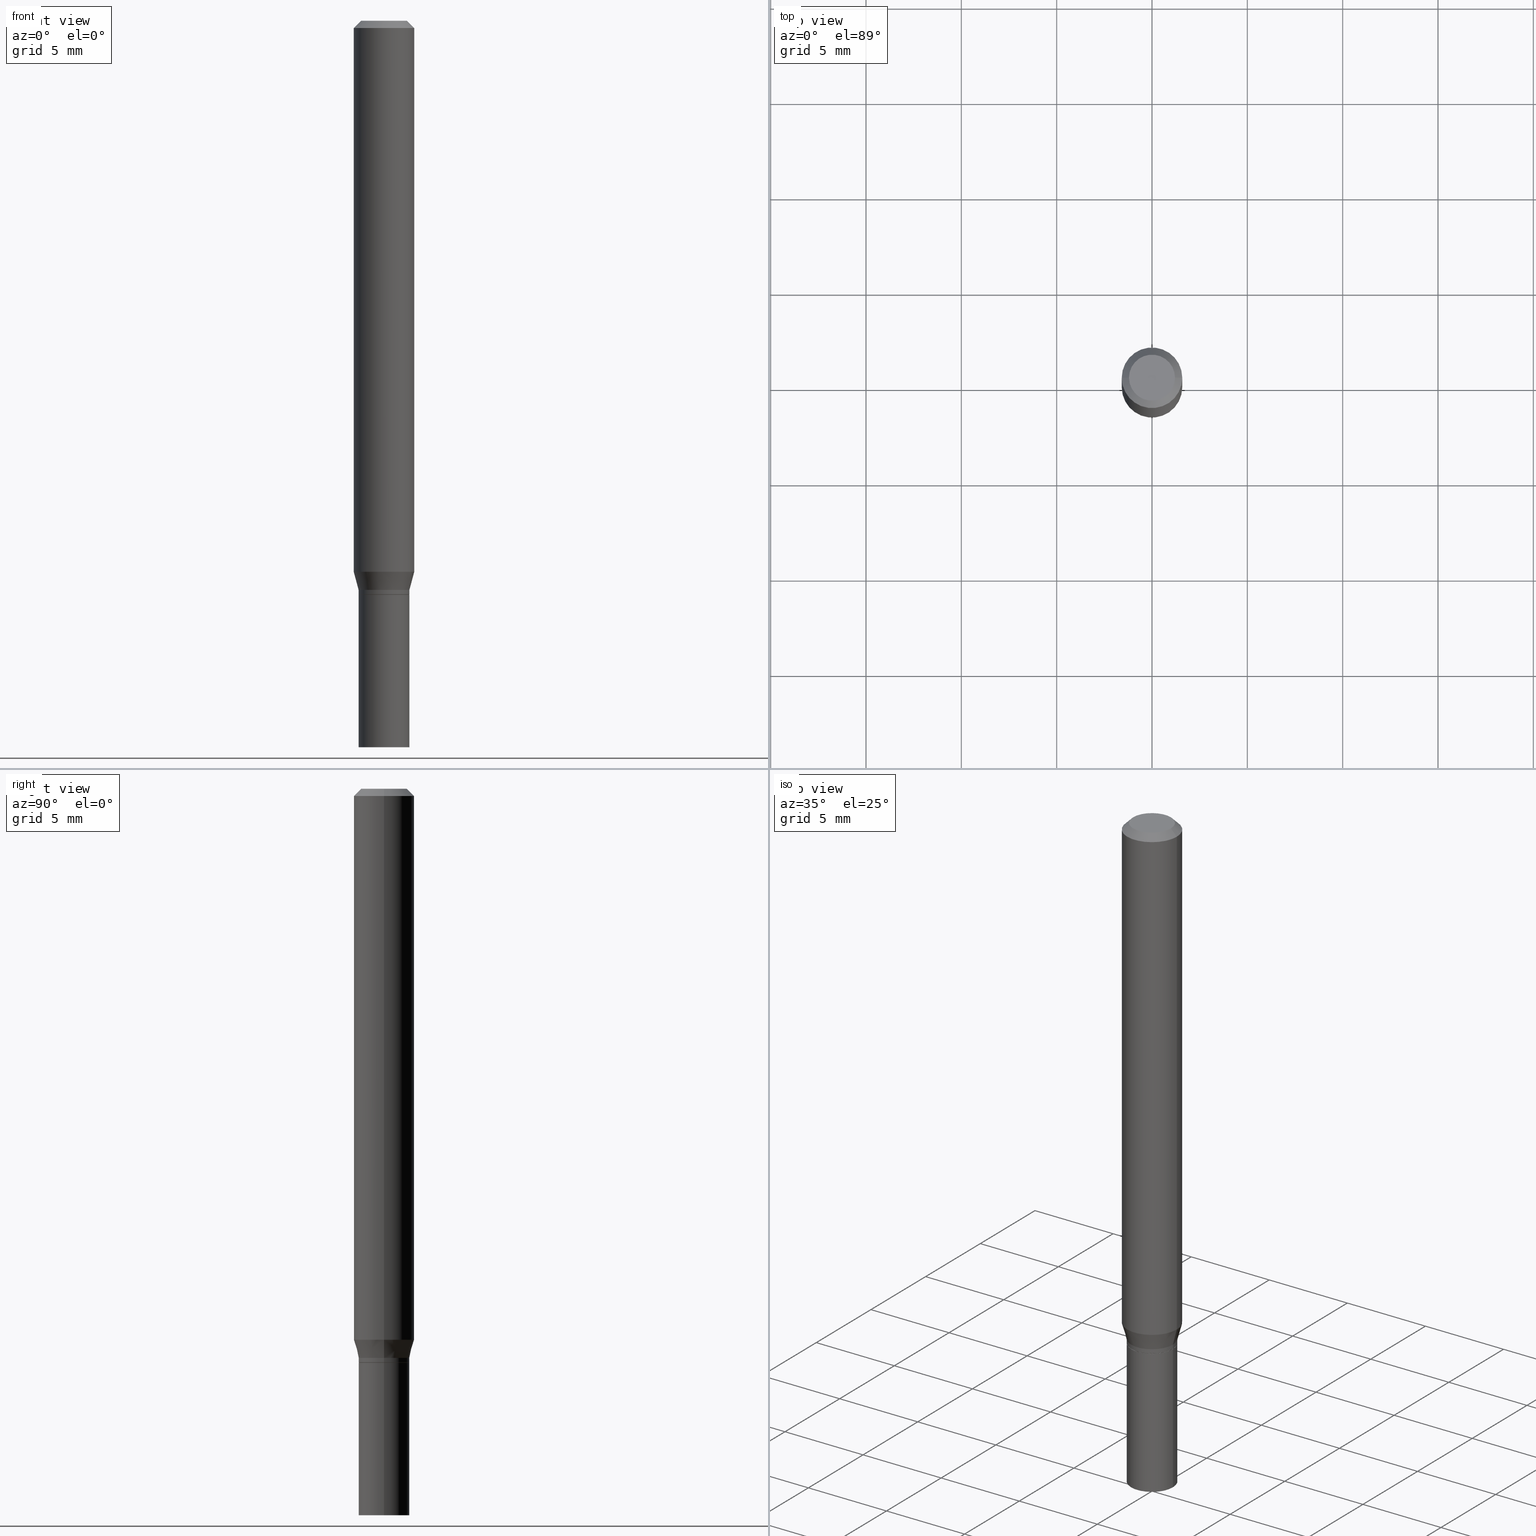
[diagram: canonical four-view strip — front | top / right | iso, engineering-drawing reading convention]
A machine part, canonical four-view strip (front | top / right | iso — engineering-drawing reading convention). The complete STEP part file that produces these views, byte-faithful:
ISO-10303-21;
HEADER;
FILE_DESCRIPTION (( 'STEP AP203' ),
    '1' );
FILE_NAME ('02500.STEP',
    '2024-03-18T20:59:29',
    ( '' ),
    ( '' ),
    'SwSTEP 2.0',
    'SolidWorks 2023',
    '' );
FILE_SCHEMA (( 'CONFIG_CONTROL_DESIGN' ));
ENDSEC;

DATA;
#1 = PERSON_AND_ORGANIZATION ( #422, #417 ) ;
#2 = LINE ( 'NONE', #41, #443 ) ;
#3 = CARTESIAN_POINT ( 'NONE',  ( 0.000000000000000000, 0.000000000000000000, 0.000000000000000000 ) ) ;
#4 = PERSON_AND_ORGANIZATION_ROLE ( 'classification_officer' ) ;
#5 = DIMENSIONAL_EXPONENTS ( 1.000000000000000000, 0.000000000000000000, 0.000000000000000000, 0.000000000000000000, 0.000000000000000000, 0.000000000000000000, 0.000000000000000000 ) ;
#6 = FACE_OUTER_BOUND ( 'NONE', #412, .T. ) ;
#7 = CIRCLE ( 'NONE', #96, 0.05199999999999999067 ) ;
#8 = LINE ( 'NONE', #326, #127 ) ;
#9 = DATE_AND_TIME ( #141, #214 ) ;
#10 = DIRECTION ( 'NONE',  ( 1.000000000000000000, -6.982962677686270655E-15, 0.000000000000000000 ) ) ;
#11 = ORIENTED_EDGE ( 'NONE', *, *, #60, .F. ) ;
#12 = DATE_AND_TIME ( #292, #154 ) ;
#13 = APPROVAL ( #401, 'UNSPECIFIED' ) ;
#14 = VECTOR ( 'NONE', #310, 39.37007874015748854 ) ;
#15 = VERTEX_POINT ( 'NONE', #204 ) ;
#16 = ORIENTED_EDGE ( 'NONE', *, *, #150, .T. ) ;
#17 = ADVANCED_FACE ( 'NONE', ( #205 ), #299, .T. ) ;
#18 = ORIENTED_EDGE ( 'NONE', *, *, #228, .T. ) ;
#19 = AXIS2_PLACEMENT_3D ( 'NONE', #130, #170, #396 ) ;
#20 = ORIENTED_EDGE ( 'NONE', *, *, #466, .F. ) ;
#21 = CARTESIAN_POINT ( 'NONE',  ( 0.05249999999999999806, -5.603827548843247337E-15, -1.500000000000000222 ) ) ;
#22 = ORIENTED_EDGE ( 'NONE', *, *, #216, .F. ) ;
#23 = VERTEX_POINT ( 'NONE', #21 ) ;
#24 = DIRECTION ( 'NONE',  ( 1.000000000000000000, -6.982962677686258822E-15, 0.000000000000000000 ) ) ;
#25 = VECTOR ( 'NONE', #252, 39.37007874015748143 ) ;
#26 = VECTOR ( 'NONE', #393, 39.37007874015748143 ) ;
#27 = CYLINDRICAL_SURFACE ( 'NONE', #179, 0.06250000000000000000 ) ;
#28 = LENGTH_MEASURE_WITH_UNIT ( LENGTH_MEASURE( 0.02539999999999999897 ), #387 );
#29 = ADVANCED_FACE ( 'NONE', ( #380 ), #384, .F. ) ;
#30 = EDGE_CURVE ( 'NONE', #138, #51, #158, .T. ) ;
#31 = DIRECTION ( 'NONE',  ( 1.000000000000000000, -6.982962677686265922E-15, 4.876176775795935232E-29 ) ) ;
#32 = CARTESIAN_POINT ( 'NONE',  ( -0.05199999999999999067, -3.765273936759765493E-15, -1.185000000000000275 ) ) ;
#33 = CIRCLE ( 'NONE', #109, 0.05250000000000005357 ) ;
#34 = PERSON_AND_ORGANIZATION_ROLE ( 'design_supplier' ) ;
#35 = AXIS2_PLACEMENT_3D ( 'NONE', #99, #102, #400 ) ;
#36 = DIRECTION ( 'NONE',  ( -2.445468806185136597E-29, 3.491481338843145583E-15, 1.000000000000000000 ) ) ;
#37 = ADVANCED_FACE ( 'NONE', ( #302 ), #27, .T. ) ;
#38 = PERSON_AND_ORGANIZATION ( #422, #417 ) ;
#39 = LINE ( 'NONE', #211, #26 ) ;
#40 = PERSON_AND_ORGANIZATION ( #422, #417 ) ;
#41 = CARTESIAN_POINT ( 'NONE',  ( -0.05249999999999999806, 3.730349362740525838E-16, -2.582440922383825311E-30 ) ) ;
#42 = COORDINATED_UNIVERSAL_TIME_OFFSET ( 5, 0, .BEHIND. ) ;
#43 = CIRCLE ( 'NONE', #300, 0.04749999999999999362 ) ;
#44 = CARTESIAN_POINT ( 'NONE',  ( 2.873425847267535838E-29, -4.102490573140696681E-15, -1.175000000000000266 ) ) ;
#45 = CC_DESIGN_SECURITY_CLASSIFICATION ( #226, ( #236 ) ) ;
#46 = ADVANCED_FACE ( 'NONE', ( #306 ), #377, .F. ) ;
#47 = SECURITY_CLASSIFICATION_LEVEL ( 'unclassified' ) ;
#48 = VERTEX_POINT ( 'NONE', #69 ) ;
#49 = LINE ( 'NONE', #264, #63 ) ;
#50 = EDGE_LOOP ( 'NONE', ( #325, #419 ) ) ;
#51 = VERTEX_POINT ( 'NONE', #281 ) ;
#52 = CARTESIAN_POINT ( 'NONE',  ( 0.05199999999999999067, -4.500519445768813694E-15, -1.185000000000000275 ) ) ;
#53 = CIRCLE ( 'NONE', #374, 0.06250000000000000000 ) ;
#54 = ORIENTED_EDGE ( 'NONE', *, *, #466, .T. ) ;
#55 = ORIENTED_EDGE ( 'NONE', *, *, #272, .F. ) ;
#56 = VERTEX_POINT ( 'NONE', #171 ) ;
#57 = EDGE_LOOP ( 'NONE', ( #413, #332, #343, #199 ) ) ;
#58 = MANIFOLD_SOLID_BREP ( 'Body-Move/Copy2[2]', #320 ) ;
#59 = AXIS2_PLACEMENT_3D ( 'NONE', #424, #245, #274 ) ;
#60 = EDGE_CURVE ( 'NONE', #298, #190, #128, .T. ) ;
#61 = ORIENTED_EDGE ( 'NONE', *, *, #295, .F. ) ;
#62 = EDGE_CURVE ( 'NONE', #152, #51, #273, .T. ) ;
#63 = VECTOR ( 'NONE', #327, 39.37007874015748854 ) ;
#64 = CARTESIAN_POINT ( 'NONE',  ( 0.000000000000000000, 0.000000000000000000, 0.000000000000000000 ) ) ;
#65 = DIRECTION ( 'NONE',  ( 1.000000000000000000, -6.982962677686268288E-15, 0.000000000000000000 ) ) ;
#66 = CARTESIAN_POINT ( 'NONE',  ( 0.05249999999999999806, -3.666055405785289629E-16, 2.559992807292866011E-30 ) ) ;
#67 = DIRECTION ( 'NONE',  ( -2.445468806185136597E-29, 3.491481338843145583E-15, 1.000000000000000000 ) ) ;
#68 = DATE_AND_TIME ( #71, #284 ) ;
#69 = CARTESIAN_POINT ( 'NONE',  ( -0.05250000000000005357, -3.762624709585653503E-15, -1.184500000000000108 ) ) ;
#70 = LINE ( 'NONE', #390, #14 ) ;
#71 = CALENDAR_DATE ( 2024, 18, 3 ) ;
#72 = CONICAL_SURFACE ( 'NONE', #267, 0.06250000000000000000, 0.7853981633974549403 ) ;
#73 = FACE_OUTER_BOUND ( 'NONE', #88, .T. ) ;
#74 = CYLINDRICAL_SURFACE ( 'NONE', #243, 0.05250000000000005357 ) ;
#75 = PERSON_AND_ORGANIZATION ( #422, #417 ) ;
#76 = APPLICATION_PROTOCOL_DEFINITION ( 'international standard', 'config_control_design', 1994, #461 ) ;
#77 = ORIENTED_EDGE ( 'NONE', *, *, #258, .F. ) ;
#78 = CARTESIAN_POINT ( 'NONE',  ( 0.06250000000000000000, -4.408621882993677332E-15, -1.137679491924311614 ) ) ;
#79 = LINE ( 'NONE', #221, #311 ) ;
#80 = CC_DESIGN_DATE_AND_TIME_ASSIGNMENT ( #180, #225, ( #226 ) ) ;
#81 = APPROVAL_ROLE ( '' ) ;
#82 = CIRCLE ( 'NONE', #262, 0.06250000000000000000 ) ;
#83 = ORIENTED_EDGE ( 'NONE', *, *, #261, .F. ) ;
#84 = CARTESIAN_POINT ( 'NONE',  ( 3.668203209277705088E-31, -5.237222008264718399E-17, -0.01499999999999999944 ) ) ;
#85 = ADVANCED_FACE ( 'NONE', ( #73 ), #425, .T. ) ;
#86 = ORIENTED_EDGE ( 'NONE', *, *, #254, .F. ) ;
#87 = CARTESIAN_POINT ( 'NONE',  ( 3.668203209277705088E-31, -5.237222008264718399E-17, -0.01499999999999999944 ) ) ;
#88 = EDGE_LOOP ( 'NONE', ( #423, #450, #375, #363 ) ) ;
#89 = EDGE_CURVE ( 'NONE', #23, #15, #359, .T. ) ;
#90 = ADVANCED_FACE ( 'NONE', ( #6 ), #351, .T. ) ;
#91 = CARTESIAN_POINT ( 'NONE',  ( 2.897880535329387383E-29, -4.137405386529128330E-15, -1.185000000000000275 ) ) ;
#92 = EDGE_CURVE ( 'NONE', #113, #56, #2, .T. ) ;
#93 = ORIENTED_EDGE ( 'NONE', *, *, #370, .F. ) ;
#94 = AXIS2_PLACEMENT_3D ( 'NONE', #316, #430, #391 ) ;
#95 = ORIENTED_EDGE ( 'NONE', *, *, #254, .T. ) ;
#96 = AXIS2_PLACEMENT_3D ( 'NONE', #290, #111, #260 ) ;
#97 = CARTESIAN_POINT ( 'NONE',  ( 2.873425847267535838E-29, -4.102490573140696681E-15, -1.175000000000000266 ) ) ;
#98 = CARTESIAN_POINT ( 'NONE',  ( -0.05249999999999999806, -4.314278761122870719E-15, -1.500000000000000222 ) ) ;
#99 = CARTESIAN_POINT ( 'NONE',  ( 3.668203209277705088E-31, -5.237222008264718399E-17, -0.01499999999999999944 ) ) ;
#100 = APPLICATION_PROTOCOL_DEFINITION ( 'international standard', 'config_control_design', 1994, #445 ) ;
#101 = CARTESIAN_POINT ( 'NONE',  ( 0.000000000000000000, 0.000000000000000000, 0.000000000000000000 ) ) ;
#102 = DIRECTION ( 'NONE',  ( 2.445468806185136597E-29, -3.491481338843145583E-15, -1.000000000000000000 ) ) ;
#103 =( NAMED_UNIT ( * ) PLANE_ANGLE_UNIT ( ) SI_UNIT ( $, .RADIAN. ) );
#104 = AXIS2_PLACEMENT_3D ( 'NONE', #132, #253, #172 ) ;
#105 = CARTESIAN_POINT ( 'NONE',  ( 2.896657800926294581E-29, -4.135659645859706826E-15, -1.184500000000000108 ) ) ;
#106 =( NAMED_UNIT ( * ) SI_UNIT ( $, .STERADIAN. ) SOLID_ANGLE_UNIT ( ) );
#107 = DIRECTION ( 'NONE',  ( -2.445468806185136877E-29, 3.491481338843145188E-15, 1.000000000000000000 ) ) ;
#108 = PERSON_AND_ORGANIZATION_ROLE ( 'design_owner' ) ;
#109 = AXIS2_PLACEMENT_3D ( 'NONE', #105, #125, #208 ) ;
#110 = CONICAL_SURFACE ( 'NONE', #453, 0.05250000000000004663, 0.2617993877991499074 ) ;
#111 = DIRECTION ( 'NONE',  ( -2.445468806185136597E-29, 3.491481338843145583E-15, 1.000000000000000000 ) ) ;
#112 = DIRECTION ( 'NONE',  ( -1.000000000000000000, 6.982962677686266711E-15, 0.000000000000000000 ) ) ;
#113 = VERTEX_POINT ( 'NONE', #98 ) ;
#114 = ORIENTED_EDGE ( 'NONE', *, *, #89, .F. ) ;
#115 = AXIS2_PLACEMENT_3D ( 'NONE', #118, #238, #155 ) ;
#116 = LOCAL_TIME ( 16, 59, 29.00000000000000000, #349 ) ;
#117 = ORIENTED_EDGE ( 'NONE', *, *, #265, .T. ) ;
#118 = CARTESIAN_POINT ( 'NONE',  ( 3.316907271900976096E-16, 0.04749999999999999362, -2.653275547260257586E-16 ) ) ;
#119 = EDGE_LOOP ( 'NONE', ( #54, #369, #83, #410 ) ) ;
#120 = ADVANCED_FACE ( 'NONE', ( #217 ), #398, .T. ) ;
#121 = AXIS2_PLACEMENT_3D ( 'NONE', #447, #368, #182 ) ;
#122 = ORIENTED_EDGE ( 'NONE', *, *, #394, .F. ) ;
#123 = DIRECTION ( 'NONE',  ( 2.438088387897960049E-29, -3.491481338843145188E-15, -1.000000000000000000 ) ) ;
#124 =( CONVERSION_BASED_UNIT ( 'INCH', #28 ) LENGTH_UNIT ( ) NAMED_UNIT ( #5 ) );
#125 = DIRECTION ( 'NONE',  ( -2.445468806185136597E-29, 3.491481338843145583E-15, 1.000000000000000000 ) ) ;
#126 = DIRECTION ( 'NONE',  ( 1.000000000000000000, -6.982962677686258822E-15, 0.000000000000000000 ) ) ;
#127 = VECTOR ( 'NONE', #186, 39.37007874015748143 ) ;
#128 = LINE ( 'NONE', #282, #25 ) ;
#129 = DIRECTION ( 'NONE',  ( 1.000000000000000000, -6.982962677686267499E-15, 4.852736867747366768E-29 ) ) ;
#130 = CARTESIAN_POINT ( 'NONE',  ( 0.000000000000000000, 0.000000000000000000, 0.000000000000000000 ) ) ;
#131 = DIRECTION ( 'NONE',  ( -2.445468806185136597E-29, 3.491481338843145583E-15, 1.000000000000000000 ) ) ;
#132 = CARTESIAN_POINT ( 'NONE',  ( 2.897880535329387383E-29, -4.137405386529128330E-15, -1.185000000000000275 ) ) ;
#133 = DIRECTION ( 'NONE',  ( -2.445468806185136597E-29, 3.491481338843145583E-15, 1.000000000000000000 ) ) ;
#134 = CARTESIAN_POINT ( 'NONE',  ( 2.897880535329387383E-29, -4.137405386529128330E-15, -1.185000000000000275 ) ) ;
#135 = CALENDAR_DATE ( 2024, 18, 3 ) ;
#136 = CARTESIAN_POINT ( 'NONE',  ( 3.668203209277704895E-29, -5.237222008264718177E-15, -1.500000000000000222 ) ) ;
#137 = APPROVAL_DATE_TIME ( #9, #361 ) ;
#138 = VERTEX_POINT ( 'NONE', #257 ) ;
#139 = ADVANCED_BREP_SHAPE_REPRESENTATION ( '02500', ( #364, #58, #19 ), #444 ) ;
#140 = ORIENTED_EDGE ( 'NONE', *, *, #92, .F. ) ;
#141 = CALENDAR_DATE ( 2024, 18, 3 ) ;
#142 = CARTESIAN_POINT ( 'NONE',  ( 0.06250000000000000000, -4.888073874380388472E-16, -0.01499999999999999944 ) ) ;
#143 = LINE ( 'NONE', #442, #399 ) ;
#144 = ORIENTED_EDGE ( 'NONE', *, *, #420, .F. ) ;
#145 = AXIS2_PLACEMENT_3D ( 'NONE', #463, #275, #210 ) ;
#146 = CIRCLE ( 'NONE', #352, 0.05249999999999999806 ) ;
#147 = APPROVAL_PERSON_ORGANIZATION ( #285, #361, #436 ) ;
#148 = DIRECTION ( 'NONE',  ( -2.445468806185136597E-29, 3.491481338843145583E-15, 1.000000000000000000 ) ) ;
#149 = EDGE_LOOP ( 'NONE', ( #414, #385, #86, #22 ) ) ;
#150 = EDGE_CURVE ( 'NONE', #113, #23, #407, .T. ) ;
#151 = APPROVAL ( #367, 'UNSPECIFIED' ) ;
#152 = VERTEX_POINT ( 'NONE', #178 ) ;
#153 = CONICAL_SURFACE ( 'NONE', #169, 0.05199999999999999067, 0.7853981633974739252 ) ;
#154 = LOCAL_TIME ( 16, 59, 29.00000000000000000, #42 ) ;
#155 = DIRECTION ( 'NONE',  ( -1.000000000000000000, 6.982962677686265922E-15, -4.876176775795935793E-29 ) ) ;
#156 = EDGE_CURVE ( 'NONE', #196, #48, #33, .T. ) ;
#157 = CC_DESIGN_PERSON_AND_ORGANIZATION_ASSIGNMENT ( #177, #4, ( #226 ) ) ;
#158 = LINE ( 'NONE', #344, #159 ) ;
#159 = VECTOR ( 'NONE', #303, 39.37007874015748143 ) ;
#160 = CONICAL_SURFACE ( 'NONE', #270, 0.05250000000000004663, 0.2617993877991499074 ) ;
#161 = CARTESIAN_POINT ( 'NONE',  ( 0.000000000000000000, 0.000000000000000000, 0.000000000000000000 ) ) ;
#162 = CARTESIAN_POINT ( 'NONE',  ( 0.04749999999999999362, -4.035134999187581581E-16, -1.989643822619502098E-16 ) ) ;
#163 = EDGE_CURVE ( 'NONE', #229, #239, #383, .T. ) ;
#164 = FACE_OUTER_BOUND ( 'NONE', #57, .T. ) ;
#165 = EDGE_CURVE ( 'NONE', #152, #298, #381, .T. ) ;
#166 = CC_DESIGN_PERSON_AND_ORGANIZATION_ASSIGNMENT ( #314, #108, ( #439 ) ) ;
#167 = DIRECTION ( 'NONE',  ( -2.438088387897960049E-29, 3.491481338843145188E-15, 1.000000000000000000 ) ) ;
#168 = AXIS2_PLACEMENT_3D ( 'NONE', #247, #131, #402 ) ;
#169 = AXIS2_PLACEMENT_3D ( 'NONE', #248, #457, #126 ) ;
#170 = DIRECTION ( 'NONE',  ( 0.000000000000000000, 0.000000000000000000, 1.000000000000000000 ) ) ;
#171 = CARTESIAN_POINT ( 'NONE',  ( -0.05249999999999999806, -4.314278761122870719E-15, -1.185000000000000275 ) ) ;
#172 = DIRECTION ( 'NONE',  ( 1.000000000000000000, -6.982962677686258822E-15, 0.000000000000000000 ) ) ;
#173 = APPROVAL_DATE_TIME ( #12, #13 ) ;
#174 = DIRECTION ( 'NONE',  ( -0.7071067811865522357, 2.468850131082306364E-15, -0.7071067811865427988 ) ) ;
#175 = FACE_OUTER_BOUND ( 'NONE', #149, .T. ) ;
#176 = ADVANCED_FACE ( 'NONE', ( #428 ), #318, .F. ) ;
#177 = PERSON_AND_ORGANIZATION ( #422, #417 ) ;
#178 = CARTESIAN_POINT ( 'NONE',  ( -0.04749999999999999362, 3.578768372314206562E-16, -1.989643822619551895E-16 ) ) ;
#179 = AXIS2_PLACEMENT_3D ( 'NONE', #161, #304, #454 ) ;
#180 = DATE_AND_TIME ( #135, #354 ) ;
#181 = AXIS2_PLACEMENT_3D ( 'NONE', #251, #346, #441 ) ;
#182 = DIRECTION ( 'NONE',  ( 1.000000000000000000, -6.982962677686261977E-15, 0.000000000000000000 ) ) ;
#183 = COORDINATED_UNIVERSAL_TIME_OFFSET ( 5, 0, .BEHIND. ) ;
#184 = ORIENTED_EDGE ( 'NONE', *, *, #235, .F. ) ;
#185 = PRODUCT_DEFINITION_SHAPE ( 'NONE', 'NONE',  #395 ) ;
#186 = DIRECTION ( 'NONE',  ( 0.7071067811865656694, -2.468850131082446387E-15, 0.7071067811865294761 ) ) ;
#187 = EDGE_LOOP ( 'NONE', ( #296, #406, #340, #409 ) ) ;
#188 = EDGE_LOOP ( 'NONE', ( #194, #372, #122, #114 ) ) ;
#189 = AXIS2_PLACEMENT_3D ( 'NONE', #91, #202, #24 ) ;
#190 = VERTEX_POINT ( 'NONE', #142 ) ;
#191 = CIRCLE ( 'NONE', #200, 0.05250000000000005357 ) ;
#192 = DIRECTION ( 'NONE',  ( -2.445468806185136597E-29, 3.491481338843145583E-15, 1.000000000000000000 ) ) ;
#193 = VERTEX_POINT ( 'NONE', #78 ) ;
#194 = ORIENTED_EDGE ( 'NONE', *, *, #235, .T. ) ;
#195 = EDGE_CURVE ( 'NONE', #138, #193, #53, .T. ) ;
#196 = VERTEX_POINT ( 'NONE', #319 ) ;
#197 = DIRECTION ( 'NONE',  ( -1.000000000000000000, 6.982962677686265922E-15, -4.876176775795935793E-29 ) ) ;
#198 = AXIS2_PLACEMENT_3D ( 'NONE', #315, #133, #435 ) ;
#199 = ORIENTED_EDGE ( 'NONE', *, *, #163, .F. ) ;
#200 = AXIS2_PLACEMENT_3D ( 'NONE', #449, #421, #244 ) ;
#201 = CC_DESIGN_DATE_AND_TIME_ASSIGNMENT ( #403, #404, ( #395 ) ) ;
#202 = DIRECTION ( 'NONE',  ( -2.445468806185136597E-29, 3.491481338843145583E-15, 1.000000000000000000 ) ) ;
#203 = ORIENTED_EDGE ( 'NONE', *, *, #62, .F. ) ;
#204 = CARTESIAN_POINT ( 'NONE',  ( 0.05249999999999999806, -4.504010927107657490E-15, -1.185000000000000275 ) ) ;
#205 = FACE_OUTER_BOUND ( 'NONE', #338, .T. ) ;
#206 = DIRECTION ( 'NONE',  ( 1.000000000000000000, -6.982962677686266711E-15, 4.876176775795936353E-29 ) ) ;
#207 = CC_DESIGN_APPROVAL ( #151, ( #395 ) ) ;
#208 = DIRECTION ( 'NONE',  ( 1.000000000000000000, -6.982962677686269866E-15, 0.000000000000000000 ) ) ;
#209 = CARTESIAN_POINT ( 'NONE',  ( 4.865611903635008365E-45, -6.946804277620623666E-31, -1.989643822619527736E-16 ) ) ;
#210 = DIRECTION ( 'NONE',  ( 1.000000000000000000, -6.982962677686267499E-15, 4.852736867747366768E-29 ) ) ;
#211 = CARTESIAN_POINT ( 'NONE',  ( -0.05250000000000005357, 3.730349362740529782E-16, -2.582440922383828464E-30 ) ) ;
#212 = DIRECTION ( 'NONE',  ( -2.445468806185136877E-29, 3.491481338843145188E-15, 1.000000000000000000 ) ) ;
#213 = AXIS2_PLACEMENT_3D ( 'NONE', #294, #405, #230 ) ;
#214 = LOCAL_TIME ( 16, 59, 29.00000000000000000, #183 ) ;
#215 = APPROVAL_DATE_TIME ( #68, #151 ) ;
#216 = EDGE_CURVE ( 'NONE', #196, #239, #79, .T. ) ;
#217 = FACE_OUTER_BOUND ( 'NONE', #188, .T. ) ;
#218 = DIRECTION ( 'NONE',  ( 1.000000000000000000, -6.982962677686266711E-15, 4.876176775795936353E-29 ) ) ;
#219 = PERSON_AND_ORGANIZATION_ROLE ( 'creator' ) ;
#220 = DIRECTION ( 'NONE',  ( -2.445468806185136877E-29, 3.491481338843145188E-15, 1.000000000000000000 ) ) ;
#221 = CARTESIAN_POINT ( 'NONE',  ( 0.05250000000000005357, -3.666055405785293573E-16, 2.559992807292869164E-30 ) ) ;
#222 = COORDINATED_UNIVERSAL_TIME_OFFSET ( 5, 0, .BEHIND. ) ;
#223 = ORIENTED_EDGE ( 'NONE', *, *, #334, .F. ) ;
#224 = DIRECTION ( 'NONE',  ( -2.445468806185136877E-29, 3.491481338843145188E-15, 1.000000000000000000 ) ) ;
#225 = DATE_TIME_ROLE ( 'classification_date' ) ;
#226 = SECURITY_CLASSIFICATION ( '', '', #47 ) ;
#227 = CARTESIAN_POINT ( 'NONE',  ( 3.668203209277705088E-31, -5.237222008264718399E-17, -0.01499999999999999944 ) ) ;
#228 = EDGE_CURVE ( 'NONE', #293, #196, #8, .T. ) ;
#229 = VERTEX_POINT ( 'NONE', #360 ) ;
#230 = DIRECTION ( 'NONE',  ( 1.000000000000000000, -6.982962677686268288E-15, 0.000000000000000000 ) ) ;
#231 = DIRECTION ( 'NONE',  ( -2.445468806185136597E-29, 3.491481338843145583E-15, 1.000000000000000000 ) ) ;
#232 = ORIENTED_EDGE ( 'NONE', *, *, #62, .T. ) ;
#233 = ADVANCED_FACE ( 'NONE', ( #437 ), #160, .T. ) ;
#234 = CIRCLE ( 'NONE', #59, 0.06250000000000000000 ) ;
#235 = EDGE_CURVE ( 'NONE', #23, #113, #146, .T. ) ;
#236 = PRODUCT_DEFINITION_FORMATION_WITH_SPECIFIED_SOURCE ( 'ANY', '', #439, .NOT_KNOWN. ) ;
#237 = ORIENTED_EDGE ( 'NONE', *, *, #261, .T. ) ;
#238 = DIRECTION ( 'NONE',  ( 2.438088387897960049E-29, -3.491481338843145188E-15, -1.000000000000000000 ) ) ;
#239 = VERTEX_POINT ( 'NONE', #330 ) ;
#240 = AXIS2_PLACEMENT_3D ( 'NONE', #455, #123, #197 ) ;
#241 = CIRCLE ( 'NONE', #121, 0.05250000000000004663 ) ;
#242 = EDGE_CURVE ( 'NONE', #193, #190, #143, .T. ) ;
#243 = AXIS2_PLACEMENT_3D ( 'NONE', #3, #347, #206 ) ;
#244 = DIRECTION ( 'NONE',  ( 1.000000000000000000, -6.982962677686269866E-15, 0.000000000000000000 ) ) ;
#245 = DIRECTION ( 'NONE',  ( -2.445468806185136597E-29, 3.491481338843145583E-15, 1.000000000000000000 ) ) ;
#246 = UNCERTAINTY_MEASURE_WITH_UNIT (LENGTH_MEASURE( 1.000000000000000082E-05 ), #124, 'distance_accuracy_value', 'NONE');
#247 = CARTESIAN_POINT ( 'NONE',  ( 2.873425847267535838E-29, -4.102490573140696681E-15, -1.175000000000000266 ) ) ;
#248 = CARTESIAN_POINT ( 'NONE',  ( 2.897880535329387383E-29, -4.137405386529128330E-15, -1.185000000000000275 ) ) ;
#249 = AXIS2_PLACEMENT_3D ( 'NONE', #465, #167, #353 ) ;
#250 = CC_DESIGN_APPROVAL ( #13, ( #236 ) ) ;
#251 = CARTESIAN_POINT ( 'NONE',  ( 3.576687321579069994E-29, -5.368277968210015545E-15, -1.500000000000000222 ) ) ;
#252 = DIRECTION ( 'NONE',  ( 0.7071067811865522357, -7.319954787623271823E-15, -0.7071067811865427988 ) ) ;
#253 = DIRECTION ( 'NONE',  ( -2.445468806185136597E-29, 3.491481338843145583E-15, 1.000000000000000000 ) ) ;
#254 = EDGE_CURVE ( 'NONE', #239, #229, #241, .T. ) ;
#255 = FACE_OUTER_BOUND ( 'NONE', #187, .T. ) ;
#256 = CONICAL_SURFACE ( 'NONE', #35, 0.06250000000000000000, 0.7853981633974549403 ) ;
#257 = CARTESIAN_POINT ( 'NONE',  ( -0.06250000000000000000, -3.528097505788222652E-15, -1.137679491924311614 ) ) ;
#258 = EDGE_CURVE ( 'NONE', #293, #416, #7, .T. ) ;
#259 = DIRECTION ( 'NONE',  ( 1.000000000000000000, -6.982962677686268288E-15, 0.000000000000000000 ) ) ;
#260 = DIRECTION ( 'NONE',  ( 1.000000000000000000, -6.982962677686258822E-15, 0.000000000000000000 ) ) ;
#261 = EDGE_CURVE ( 'NONE', #190, #51, #82, .T. ) ;
#262 = AXIS2_PLACEMENT_3D ( 'NONE', #84, #192, #440 ) ;
#263 = FACE_OUTER_BOUND ( 'NONE', #438, .T. ) ;
#264 = CARTESIAN_POINT ( 'NONE',  ( -0.05250000000000004663, -3.729455636866644146E-15, -1.175000000000000266 ) ) ;
#265 = EDGE_CURVE ( 'NONE', #56, #15, #337, .T. ) ;
#266 = ORIENTED_EDGE ( 'NONE', *, *, #272, .T. ) ;
#267 = AXIS2_PLACEMENT_3D ( 'NONE', #227, #371, #112 ) ;
#268 = ORIENTED_EDGE ( 'NONE', *, *, #464, .F. ) ;
#269 = ORIENTED_EDGE ( 'NONE', *, *, #150, .F. ) ;
#270 = AXIS2_PLACEMENT_3D ( 'NONE', #44, #148, #408 ) ;
#271 = ADVANCED_FACE ( 'NONE', ( #263 ), #72, .T. ) ;
#272 = EDGE_CURVE ( 'NONE', #229, #138, #49, .T. ) ;
#273 = LINE ( 'NONE', #309, #451 ) ;
#274 = DIRECTION ( 'NONE',  ( 1.000000000000000000, -6.982962677686270655E-15, 0.000000000000000000 ) ) ;
#275 = DIRECTION ( 'NONE',  ( -2.445468806185136597E-29, 3.491481338843145583E-15, 1.000000000000000000 ) ) ;
#276 = AXIS2_PLACEMENT_3D ( 'NONE', #101, #459, #31 ) ;
#277 = DIRECTION ( 'NONE',  ( 1.000000000000000000, -6.982962677686261977E-15, 0.000000000000000000 ) ) ;
#278 = AXIS2_PLACEMENT_3D ( 'NONE', #87, #231, #373 ) ;
#279 = DIRECTION ( 'NONE',  ( -2.445468806185136597E-29, 3.491481338843145583E-15, 1.000000000000000000 ) ) ;
#280 = EDGE_CURVE ( 'NONE', #51, #190, #328, .T. ) ;
#281 = CARTESIAN_POINT ( 'NONE',  ( -0.06250000000000000000, -1.568190258010403558E-15, -0.01499999999999999944 ) ) ;
#282 = CARTESIAN_POINT ( 'NONE',  ( 0.06250000000000000000, -4.811533449433679005E-16, -0.01499999999999999944 ) ) ;
#283 = CLOSED_SHELL ( 'NONE', ( #120, #176, #90, #46 ) ) ;
#284 = LOCAL_TIME ( 16, 59, 29.00000000000000000, #462 ) ;
#285 = PERSON_AND_ORGANIZATION ( #422, #417 ) ;
#286 = DIRECTION ( 'NONE',  ( -2.445468806185136597E-29, 3.491481338843145583E-15, 1.000000000000000000 ) ) ;
#287 = SHAPE_DEFINITION_REPRESENTATION ( #185, #139 ) ;
#288 = ORIENTED_EDGE ( 'NONE', *, *, #89, .T. ) ;
#289 = PRODUCT_RELATED_PRODUCT_CATEGORY ( 'detail', '', ( #439 ) ) ;
#290 = CARTESIAN_POINT ( 'NONE',  ( 2.897880535329387383E-29, -4.137405386529128330E-15, -1.185000000000000275 ) ) ;
#291 = EDGE_LOOP ( 'NONE', ( #95, #266, #20, #144 ) ) ;
#292 = CALENDAR_DATE ( 2024, 18, 3 ) ;
#293 = VERTEX_POINT ( 'NONE', #52 ) ;
#294 = CARTESIAN_POINT ( 'NONE',  ( 2.897880535329387383E-29, -4.137405386529128330E-15, -1.185000000000000275 ) ) ;
#295 = EDGE_CURVE ( 'NONE', #48, #196, #191, .T. ) ;
#296 = ORIENTED_EDGE ( 'NONE', *, *, #258, .T. ) ;
#297 = ORIENTED_EDGE ( 'NONE', *, *, #163, .T. ) ;
#298 = VERTEX_POINT ( 'NONE', #162 ) ;
#299 = CONICAL_SURFACE ( 'NONE', #189, 0.05199999999999999067, 0.7853981633974739252 ) ;
#300 = AXIS2_PLACEMENT_3D ( 'NONE', #209, #357, #129 ) ;
#301 = ADVANCED_FACE ( 'NONE', ( #345 ), #431, .F. ) ;
#302 = FACE_OUTER_BOUND ( 'NONE', #119, .T. ) ;
#303 = DIRECTION ( 'NONE',  ( -2.445468806185136877E-29, 3.491481338843145188E-15, 1.000000000000000000 ) ) ;
#304 = DIRECTION ( 'NONE',  ( -2.445468806185136597E-29, 3.491481338843145583E-15, 1.000000000000000000 ) ) ;
#305 = CC_DESIGN_PERSON_AND_ORGANIZATION_ASSIGNMENT ( #1, #434, ( #395 ) ) ;
#306 = FACE_OUTER_BOUND ( 'NONE', #452, .T. ) ;
#307 = CARTESIAN_POINT ( 'NONE',  ( -0.05199999999999999067, -3.767923163933875905E-15, -1.185000000000000275 ) ) ;
#308 = CYLINDRICAL_SURFACE ( 'NONE', #366, 0.05250000000000005357 ) ;
#309 = CARTESIAN_POINT ( 'NONE',  ( -0.06250000000000000000, 3.840629472727444916E-16, -0.01499999999999999944 ) ) ;
#310 = DIRECTION ( 'NONE',  ( 0.2588190451025211836, 1.565188264969622559E-15, 0.9659258262890679791 ) ) ;
#311 = VECTOR ( 'NONE', #107, 39.37007874015748143 ) ;
#312 = APPROVAL_PERSON_ORGANIZATION ( #38, #13, #81 ) ;
#313 = ADVANCED_FACE ( 'NONE', ( #433 ), #110, .T. ) ;
#314 = PERSON_AND_ORGANIZATION ( #422, #417 ) ;
#315 = CARTESIAN_POINT ( 'NONE',  ( 3.668203209277704895E-29, -5.237222008264718177E-15, -1.500000000000000222 ) ) ;
#316 = CARTESIAN_POINT ( 'NONE',  ( 0.000000000000000000, 0.000000000000000000, 0.000000000000000000 ) ) ;
#317 = CARTESIAN_POINT ( 'NONE',  ( 0.000000000000000000, 0.000000000000000000, 0.000000000000000000 ) ) ;
#318 = PLANE ( 'NONE',  #181 ) ;
#319 = CARTESIAN_POINT ( 'NONE',  ( 0.05250000000000005357, -4.502265186438235986E-15, -1.184500000000000108 ) ) ;
#320 = CLOSED_SHELL ( 'NONE', ( #392, #378, #271, #37, #233, #313, #85, #342, #29, #301, #17, #336 ) ) ;
#321 = APPROVAL_STATUS ( 'not_yet_approved' ) ;
#322 = DIRECTION ( 'NONE',  ( -2.445468806185136597E-29, 3.491481338843145583E-15, 1.000000000000000000 ) ) ;
#323 = ORIENTED_EDGE ( 'NONE', *, *, #280, .T. ) ;
#324 = PERSON_AND_ORGANIZATION ( #422, #417 ) ;
#325 = ORIENTED_EDGE ( 'NONE', *, *, #165, .T. ) ;
#326 = CARTESIAN_POINT ( 'NONE',  ( 0.05199999999999999067, -4.500519445768813694E-15, -1.185000000000000275 ) ) ;
#327 = DIRECTION ( 'NONE',  ( -0.2588190451025211836, 5.211531920934547886E-15, 0.9659258262890679791 ) ) ;
#328 = CIRCLE ( 'NONE', #278, 0.06250000000000000000 ) ;
#329 = ORIENTED_EDGE ( 'NONE', *, *, #60, .T. ) ;
#330 = CARTESIAN_POINT ( 'NONE',  ( 0.05250000000000004663, -4.469096113719225841E-15, -1.175000000000000266 ) ) ;
#331 = ORIENTED_EDGE ( 'NONE', *, *, #265, .F. ) ;
#332 = ORIENTED_EDGE ( 'NONE', *, *, #295, .T. ) ;
#333 = ORIENTED_EDGE ( 'NONE', *, *, #394, .T. ) ;
#334 = EDGE_CURVE ( 'NONE', #298, #152, #43, .T. ) ;
#335 = ORIENTED_EDGE ( 'NONE', *, *, #195, .F. ) ;
#336 = ADVANCED_FACE ( 'NONE', ( #164 ), #308, .T. ) ;
#337 = CIRCLE ( 'NONE', #213, 0.05249999999999999806 ) ;
#338 = EDGE_LOOP ( 'NONE', ( #93, #382, #18, #61 ) ) ;
#339 = EDGE_LOOP ( 'NONE', ( #184, #269 ) ) ;
#340 = ORIENTED_EDGE ( 'NONE', *, *, #156, .F. ) ;
#341 = DESIGN_CONTEXT ( 'detailed design', #461, 'design' ) ;
#342 = ADVANCED_FACE ( 'NONE', ( #429 ), #256, .T. ) ;
#343 = ORIENTED_EDGE ( 'NONE', *, *, #216, .T. ) ;
#344 = CARTESIAN_POINT ( 'NONE',  ( -0.06250000000000000000, 4.440892098500626162E-16, -3.074334431409316114E-30 ) ) ;
#345 = FACE_OUTER_BOUND ( 'NONE', #448, .T. ) ;
#346 = DIRECTION ( 'NONE',  ( -2.438088387897960049E-29, 3.491481338843145188E-15, 1.000000000000000000 ) ) ;
#347 = DIRECTION ( 'NONE',  ( -2.445468806185136597E-29, 3.491481338843145583E-15, 1.000000000000000000 ) ) ;
#348 = CC_DESIGN_PERSON_AND_ORGANIZATION_ASSIGNMENT ( #75, #219, ( #236 ) ) ;
#349 = COORDINATED_UNIVERSAL_TIME_OFFSET ( 5, 0, .BEHIND. ) ;
#350 = AXIS2_PLACEMENT_3D ( 'NONE', #64, #356, #432 ) ;
#351 = CYLINDRICAL_SURFACE ( 'NONE', #276, 0.05249999999999999806 ) ;
#352 = AXIS2_PLACEMENT_3D ( 'NONE', #136, #286, #259 ) ;
#353 = DIRECTION ( 'NONE',  ( 1.000000000000000000, -6.982962677686265922E-15, 4.876176775795935793E-29 ) ) ;
#354 = LOCAL_TIME ( 16, 59, 29.00000000000000000, #222 ) ;
#355 = CALENDAR_DATE ( 2024, 18, 3 ) ;
#356 = DIRECTION ( 'NONE',  ( -2.445468806185136597E-29, 3.491481338843145583E-15, 1.000000000000000000 ) ) ;
#357 = DIRECTION ( 'NONE',  ( -2.445468806185136597E-29, 3.491481338843145583E-15, 1.000000000000000000 ) ) ;
#358 = APPROVAL_ROLE ( '' ) ;
#359 = LINE ( 'NONE', #66, #365 ) ;
#360 = CARTESIAN_POINT ( 'NONE',  ( -0.05250000000000004663, -3.628776571327433202E-15, -1.175000000000000266 ) ) ;
#361 = APPROVAL ( #321, 'UNSPECIFIED' ) ;
#362 = CARTESIAN_POINT ( 'NONE',  ( 2.782159708937459233E-29, -3.972186715638284874E-15, -1.137679491924311614 ) ) ;
#363 = ORIENTED_EDGE ( 'NONE', *, *, #280, .F. ) ;
#364 = MANIFOLD_SOLID_BREP ( 'Body-Move/Copy2[1]', #283 ) ;
#365 = VECTOR ( 'NONE', #220, 39.37007874015748143 ) ;
#366 = AXIS2_PLACEMENT_3D ( 'NONE', #317, #36, #218 ) ;
#367 = APPROVAL_STATUS ( 'not_yet_approved' ) ;
#368 = DIRECTION ( 'NONE',  ( -2.445468806185136597E-29, 3.491481338843145583E-15, 1.000000000000000000 ) ) ;
#369 = ORIENTED_EDGE ( 'NONE', *, *, #30, .T. ) ;
#370 = EDGE_CURVE ( 'NONE', #416, #48, #426, .T. ) ;
#371 = DIRECTION ( 'NONE',  ( 2.445468806185136597E-29, -3.491481338843145583E-15, -1.000000000000000000 ) ) ;
#372 = ORIENTED_EDGE ( 'NONE', *, *, #92, .T. ) ;
#373 = DIRECTION ( 'NONE',  ( 1.000000000000000000, -6.982962677686266711E-15, 0.000000000000000000 ) ) ;
#374 = AXIS2_PLACEMENT_3D ( 'NONE', #362, #322, #10 ) ;
#375 = ORIENTED_EDGE ( 'NONE', *, *, #242, .T. ) ;
#376 = ORIENTED_EDGE ( 'NONE', *, *, #165, .F. ) ;
#377 = PLANE ( 'NONE',  #240 ) ;
#378 = ADVANCED_FACE ( 'NONE', ( #255 ), #153, .T. ) ;
#379 = EDGE_LOOP ( 'NONE', ( #11, #376, #232, #323 ) ) ;
#380 = FACE_OUTER_BOUND ( 'NONE', #50, .T. ) ;
#381 = CIRCLE ( 'NONE', #145, 0.04749999999999999362 ) ;
#382 = ORIENTED_EDGE ( 'NONE', *, *, #464, .T. ) ;
#383 = CIRCLE ( 'NONE', #168, 0.05250000000000004663 ) ;
#384 = PLANE ( 'NONE',  #115 ) ;
#385 = ORIENTED_EDGE ( 'NONE', *, *, #389, .T. ) ;
#386 = ORIENTED_EDGE ( 'NONE', *, *, #420, .T. ) ;
#387 =( LENGTH_UNIT ( ) NAMED_UNIT ( * ) SI_UNIT ( $, .METRE. ) );
#388 = CIRCLE ( 'NONE', #458, 0.05249999999999999806 ) ;
#389 = EDGE_CURVE ( 'NONE', #48, #229, #39, .T. ) ;
#390 = CARTESIAN_POINT ( 'NONE',  ( 0.05250000000000004663, -4.469096113719225841E-15, -1.175000000000000266 ) ) ;
#391 = DIRECTION ( 'NONE',  ( 1.000000000000000000, -6.982962677686266711E-15, 4.876176775795935793E-29 ) ) ;
#392 = ADVANCED_FACE ( 'NONE', ( #175 ), #74, .T. ) ;
#393 = DIRECTION ( 'NONE',  ( -2.445468806185136877E-29, 3.491481338843145188E-15, 1.000000000000000000 ) ) ;
#394 = EDGE_CURVE ( 'NONE', #15, #56, #388, .T. ) ;
#395 = PRODUCT_DEFINITION ( 'UNKNOWN', '', #236, #341 ) ;
#396 = DIRECTION ( 'NONE',  ( 1.000000000000000000, 0.000000000000000000, 0.000000000000000000 ) ) ;
#397 = MECHANICAL_CONTEXT ( 'NONE', #445, 'mechanical' ) ;
#398 = CYLINDRICAL_SURFACE ( 'NONE', #350, 0.05249999999999999806 ) ;
#399 = VECTOR ( 'NONE', #224, 39.37007874015748143 ) ;
#400 = DIRECTION ( 'NONE',  ( -1.000000000000000000, 6.982962677686266711E-15, 0.000000000000000000 ) ) ;
#401 = APPROVAL_STATUS ( 'not_yet_approved' ) ;
#402 = DIRECTION ( 'NONE',  ( 1.000000000000000000, -6.982962677686261977E-15, 0.000000000000000000 ) ) ;
#403 = DATE_AND_TIME ( #355, #116 ) ;
#404 = DATE_TIME_ROLE ( 'creation_date' ) ;
#405 = DIRECTION ( 'NONE',  ( -2.445468806185136597E-29, 3.491481338843145583E-15, 1.000000000000000000 ) ) ;
#406 = ORIENTED_EDGE ( 'NONE', *, *, #370, .T. ) ;
#407 = CIRCLE ( 'NONE', #198, 0.05249999999999999806 ) ;
#408 = DIRECTION ( 'NONE',  ( 1.000000000000000000, -6.982962677686261977E-15, 0.000000000000000000 ) ) ;
#409 = ORIENTED_EDGE ( 'NONE', *, *, #228, .F. ) ;
#410 = ORIENTED_EDGE ( 'NONE', *, *, #242, .F. ) ;
#411 = APPROVAL_PERSON_ORGANIZATION ( #324, #151, #358 ) ;
#412 = EDGE_LOOP ( 'NONE', ( #140, #16, #288, #331 ) ) ;
#413 = ORIENTED_EDGE ( 'NONE', *, *, #389, .F. ) ;
#414 = ORIENTED_EDGE ( 'NONE', *, *, #156, .T. ) ;
#415 = EDGE_LOOP ( 'NONE', ( #55, #297, #386, #335 ) ) ;
#416 = VERTEX_POINT ( 'NONE', #32 ) ;
#417 = ORGANIZATION ( 'UNSPECIFIED', 'UNSPECIFIED', '' ) ;
#418 = CC_DESIGN_APPROVAL ( #361, ( #226 ) ) ;
#419 = ORIENTED_EDGE ( 'NONE', *, *, #334, .T. ) ;
#420 = EDGE_CURVE ( 'NONE', #239, #193, #70, .T. ) ;
#421 = DIRECTION ( 'NONE',  ( -2.445468806185136597E-29, 3.491481338843145583E-15, 1.000000000000000000 ) ) ;
#422 = PERSON ( 'UNSPECIFIED', 'UNSPECIFIED', 'UNSPECIFIED', ('UNSPECIFIED'), ('UNSPECIFIED'), ('UNSPECIFIED') ) ;
#423 = ORIENTED_EDGE ( 'NONE', *, *, #30, .F. ) ;
#424 = CARTESIAN_POINT ( 'NONE',  ( 2.782159708937459233E-29, -3.972186715638284874E-15, -1.137679491924311614 ) ) ;
#425 = CYLINDRICAL_SURFACE ( 'NONE', #94, 0.06250000000000000000 ) ;
#426 = LINE ( 'NONE', #307, #446 ) ;
#427 = CIRCLE ( 'NONE', #104, 0.05199999999999999067 ) ;
#428 = FACE_OUTER_BOUND ( 'NONE', #339, .T. ) ;
#429 = FACE_OUTER_BOUND ( 'NONE', #379, .T. ) ;
#430 = DIRECTION ( 'NONE',  ( -2.445468806185136597E-29, 3.491481338843145583E-15, 1.000000000000000000 ) ) ;
#431 = PLANE ( 'NONE',  #249 ) ;
#432 = DIRECTION ( 'NONE',  ( 1.000000000000000000, -6.982962677686265922E-15, 4.876176775795935232E-29 ) ) ;
#433 = FACE_OUTER_BOUND ( 'NONE', #415, .T. ) ;
#434 = PERSON_AND_ORGANIZATION_ROLE ( 'creator' ) ;
#435 = DIRECTION ( 'NONE',  ( 1.000000000000000000, -6.982962677686268288E-15, 0.000000000000000000 ) ) ;
#436 = APPROVAL_ROLE ( '' ) ;
#437 = FACE_OUTER_BOUND ( 'NONE', #291, .T. ) ;
#438 = EDGE_LOOP ( 'NONE', ( #223, #329, #237, #203 ) ) ;
#439 = PRODUCT ( '02500', '02500', '', ( #397 ) ) ;
#440 = DIRECTION ( 'NONE',  ( 1.000000000000000000, -6.982962677686266711E-15, 0.000000000000000000 ) ) ;
#441 = DIRECTION ( 'NONE',  ( 1.000000000000000000, -6.982962677686265922E-15, 4.876176775795935793E-29 ) ) ;
#442 = CARTESIAN_POINT ( 'NONE',  ( 0.06250000000000000000, -4.364351673553916694E-16, 3.047610484872459871E-30 ) ) ;
#443 = VECTOR ( 'NONE', #212, 39.37007874015748143 ) ;
#444 =( GEOMETRIC_REPRESENTATION_CONTEXT ( 3 ) GLOBAL_UNCERTAINTY_ASSIGNED_CONTEXT ( ( #246 ) ) GLOBAL_UNIT_ASSIGNED_CONTEXT ( ( #124, #103, #106 ) ) REPRESENTATION_CONTEXT ( 'NONE', 'WORKASPACE' ) );
#445 = APPLICATION_CONTEXT ( 'configuration controlled 3d designs of mechanical parts and assemblies' ) ;
#446 = VECTOR ( 'NONE', #460, 39.37007874015748143 ) ;
#447 = CARTESIAN_POINT ( 'NONE',  ( 2.873425847267535838E-29, -4.102490573140696681E-15, -1.175000000000000266 ) ) ;
#448 = EDGE_LOOP ( 'NONE', ( #77, #268 ) ) ;
#449 = CARTESIAN_POINT ( 'NONE',  ( 2.896657800926294581E-29, -4.135659645859706826E-15, -1.184500000000000108 ) ) ;
#450 = ORIENTED_EDGE ( 'NONE', *, *, #195, .T. ) ;
#451 = VECTOR ( 'NONE', #174, 39.37007874015748143 ) ;
#452 = EDGE_LOOP ( 'NONE', ( #333, #117 ) ) ;
#453 = AXIS2_PLACEMENT_3D ( 'NONE', #97, #67, #277 ) ;
#454 = DIRECTION ( 'NONE',  ( 1.000000000000000000, -6.982962677686266711E-15, 4.876176775795935793E-29 ) ) ;
#455 = CARTESIAN_POINT ( 'NONE',  ( 3.666055405785579535E-16, 0.05249999999999585554, -1.185000000000000275 ) ) ;
#456 = CC_DESIGN_PERSON_AND_ORGANIZATION_ASSIGNMENT ( #40, #34, ( #236 ) ) ;
#457 = DIRECTION ( 'NONE',  ( -2.445468806185136597E-29, 3.491481338843145583E-15, 1.000000000000000000 ) ) ;
#458 = AXIS2_PLACEMENT_3D ( 'NONE', #134, #279, #65 ) ;
#459 = DIRECTION ( 'NONE',  ( -2.445468806185136597E-29, 3.491481338843145583E-15, 1.000000000000000000 ) ) ;
#460 = DIRECTION ( 'NONE',  ( -0.7071067811865656694, 7.493145998870420424E-15, 0.7071067811865294761 ) ) ;
#461 = APPLICATION_CONTEXT ( 'configuration controlled 3d designs of mechanical parts and assemblies' ) ;
#462 = COORDINATED_UNIVERSAL_TIME_OFFSET ( 5, 0, .BEHIND. ) ;
#463 = CARTESIAN_POINT ( 'NONE',  ( 4.865611903635008365E-45, -6.946804277620623666E-31, -1.989643822619527736E-16 ) ) ;
#464 = EDGE_CURVE ( 'NONE', #416, #293, #427, .T. ) ;
#465 = CARTESIAN_POINT ( 'NONE',  ( 2.897880535329387383E-29, -4.137405386529128330E-15, -1.185000000000000275 ) ) ;
#466 = EDGE_CURVE ( 'NONE', #193, #138, #234, .T. ) ;
ENDSEC;
END-ISO-10303-21;
